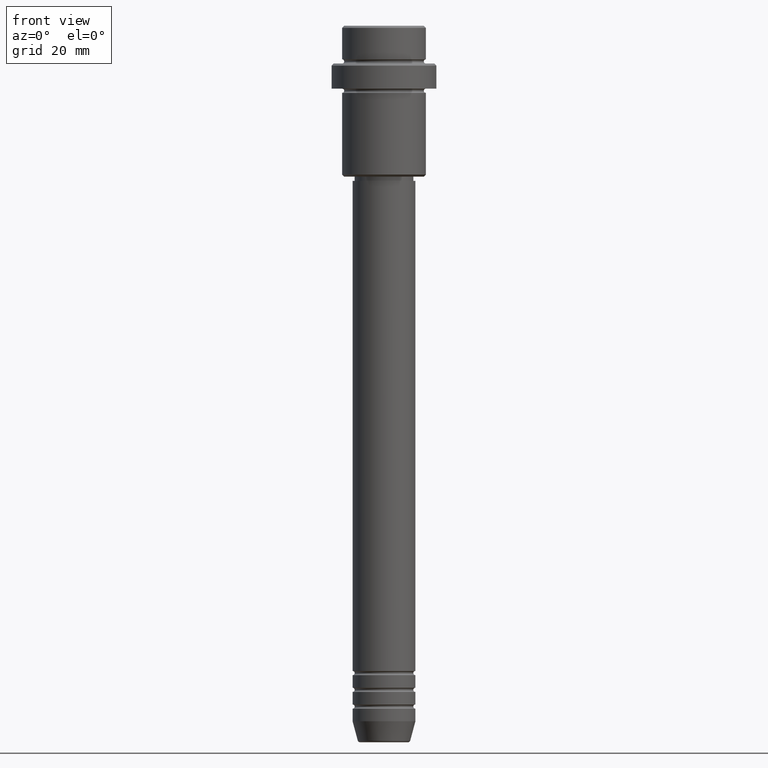
[diagram: clean part render]
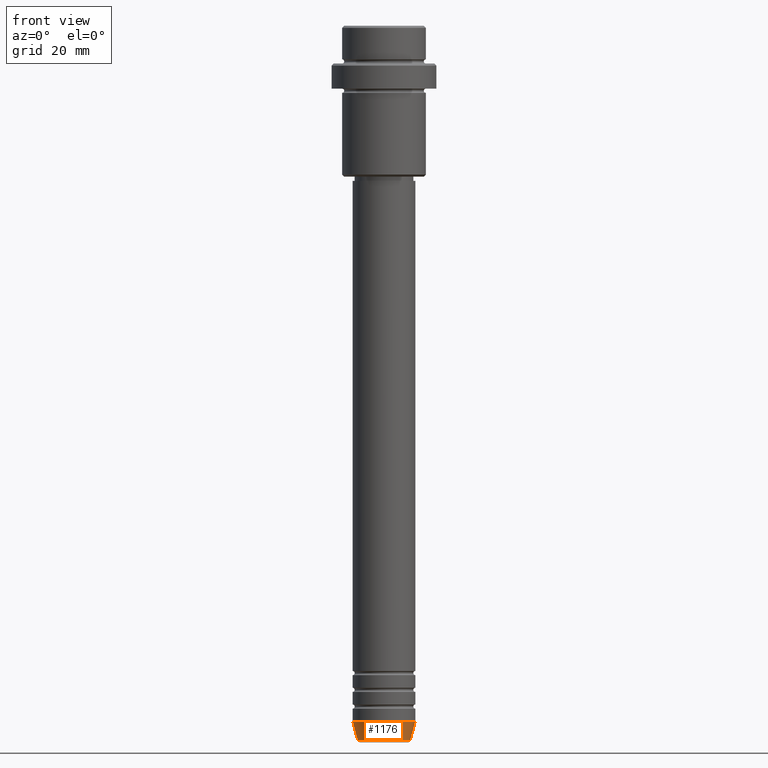
[diagram: same view with one face highlighted and labeled with its STEP entity id]
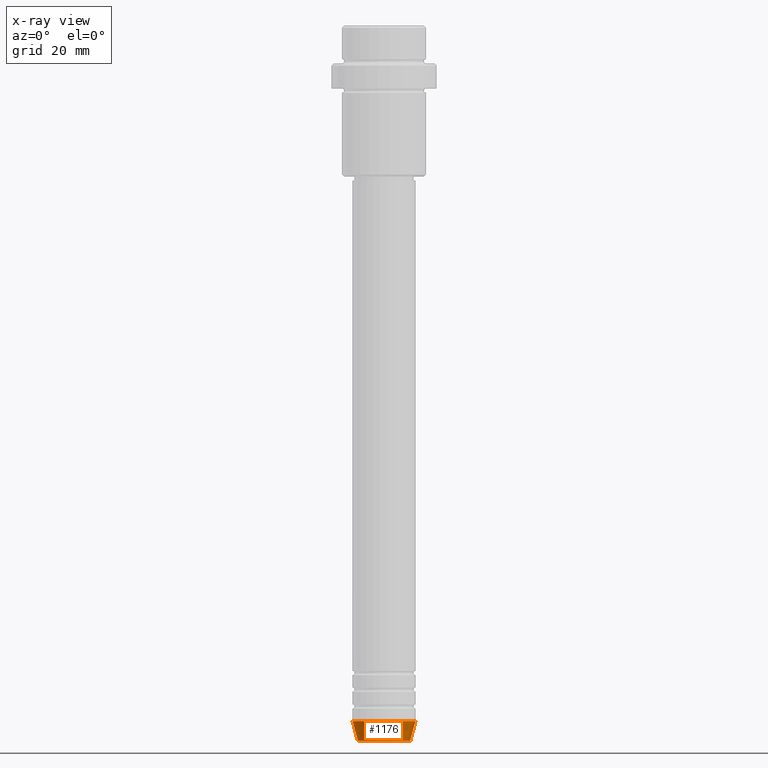
[diagram: x-ray of the same camera — body ghosted, the highlighted face saturated]
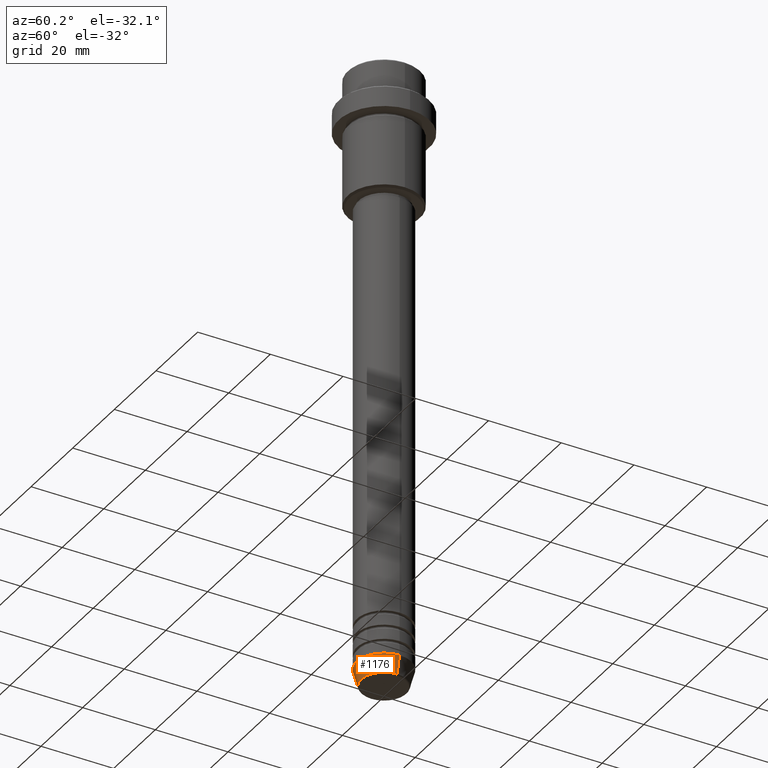
[diagram: same view with one face highlighted and labeled with its STEP entity id]
A machine part, front view. The second image highlights one B-rep face of the part: STEP entity #1176.
The next image is the same camera in x-ray: the body ghosted, the highlighted face saturated — about 0% of this face is hidden behind the body in this view.
A second angle (auxiliary view) of the same face is appended — the face is thin or edge-on in the first view.
In plain terms, the highlighted conical surface has half-angle 15 deg.
Its self-contained STEP definition (entity closure, byte-faithful):
#17 = EDGE_CURVE ( 'NONE', #725, #671, #809, .T. ) ;
#41 = CIRCLE ( 'NONE', #1211, 7.500000000000000000 ) ;
#116 = EDGE_CURVE ( 'NONE', #671, #186, #698, .T. ) ;
#143 = EDGE_LOOP ( 'NONE', ( #1257, #795, #338, #869 ) ) ;
#152 = CARTESIAN_POINT ( 'NONE',  ( -7.500000000000000000, 9.184850993605147944E-16, -166.0000000000000000 ) ) ;
#159 = CARTESIAN_POINT ( 'NONE',  ( 0.000000000000000000, 0.000000000000000000, -166.0000000000000000 ) ) ;
#186 = VERTEX_POINT ( 'NONE', #635 ) ;
#210 = DIRECTION ( 'NONE',  ( 1.000000000000000000, 0.000000000000000000, 0.000000000000000000 ) ) ;
#214 = DIRECTION ( 'NONE',  ( -0.000000000000000000, -0.000000000000000000, 1.000000000000000000 ) ) ;
#230 = CARTESIAN_POINT ( 'NONE',  ( 0.000000000000000000, 0.000000000000000000, -170.6294095225512706 ) ) ;
#338 = ORIENTED_EDGE ( 'NONE', *, *, #116, .T. ) ;
#384 = CARTESIAN_POINT ( 'NONE',  ( 6.259553456999435106, 0.000000000000000000, -170.6294095225512706 ) ) ;
#489 = DIRECTION ( 'NONE',  ( 0.2588190451025227379, 0.000000000000000000, 0.9659258262890676461 ) ) ;
#506 = VECTOR ( 'NONE', #489, 1000.000000000000114 ) ;
#546 = LINE ( 'NONE', #1291, #965 ) ;
#629 = AXIS2_PLACEMENT_3D ( 'NONE', #230, #214, #210 ) ;
#634 = CARTESIAN_POINT ( 'NONE',  ( 0.000000000000000000, 0.000000000000000000, -166.0000000000000000 ) ) ;
#635 = CARTESIAN_POINT ( 'NONE',  ( 7.500000000000000000, 0.000000000000000000, -166.0000000000000000 ) ) ;
#671 = VERTEX_POINT ( 'NONE', #384 ) ;
#688 = CARTESIAN_POINT ( 'NONE',  ( 7.500000000000000000, 0.000000000000000000, -166.0000000000000000 ) ) ;
#698 = LINE ( 'NONE', #688, #506 ) ;
#723 = DIRECTION ( 'NONE',  ( -0.000000000000000000, -0.000000000000000000, 1.000000000000000000 ) ) ;
#725 = VERTEX_POINT ( 'NONE', #1276 ) ;
#768 = EDGE_CURVE ( 'NONE', #1024, #186, #41, .T. ) ;
#795 = ORIENTED_EDGE ( 'NONE', *, *, #17, .T. ) ;
#809 = CIRCLE ( 'NONE', #629, 6.259553456999435106 ) ;
#827 = EDGE_CURVE ( 'NONE', #725, #1024, #546, .T. ) ;
#828 = CONICAL_SURFACE ( 'NONE', #1306, 7.500000000000000000, 0.2617993877991514617 ) ;
#842 = FACE_OUTER_BOUND ( 'NONE', #143, .T. ) ;
#869 = ORIENTED_EDGE ( 'NONE', *, *, #768, .F. ) ;
#965 = VECTOR ( 'NONE', #1317, 1000.000000000000114 ) ;
#1024 = VERTEX_POINT ( 'NONE', #152 ) ;
#1176 = ADVANCED_FACE ( 'NONE', ( #842 ), #828, .T. ) ;
#1211 = AXIS2_PLACEMENT_3D ( 'NONE', #634, #723, #1372 ) ;
#1254 = DIRECTION ( 'NONE',  ( -0.000000000000000000, -0.000000000000000000, 1.000000000000000000 ) ) ;
#1257 = ORIENTED_EDGE ( 'NONE', *, *, #827, .F. ) ;
#1276 = CARTESIAN_POINT ( 'NONE',  ( -6.259553456999435106, 8.425296549405626528E-16, -170.6294095225512706 ) ) ;
#1281 = DIRECTION ( 'NONE',  ( 1.000000000000000000, 0.000000000000000000, 0.000000000000000000 ) ) ;
#1291 = CARTESIAN_POINT ( 'NONE',  ( -7.500000000000000000, 9.184850993605147944E-16, -166.0000000000000000 ) ) ;
#1306 = AXIS2_PLACEMENT_3D ( 'NONE', #159, #1254, #1281 ) ;
#1317 = DIRECTION ( 'NONE',  ( -0.2588190451025227379, 3.169619151431788361E-17, 0.9659258262890676461 ) ) ;
#1372 = DIRECTION ( 'NONE',  ( 1.000000000000000000, 0.000000000000000000, 0.000000000000000000 ) ) ;